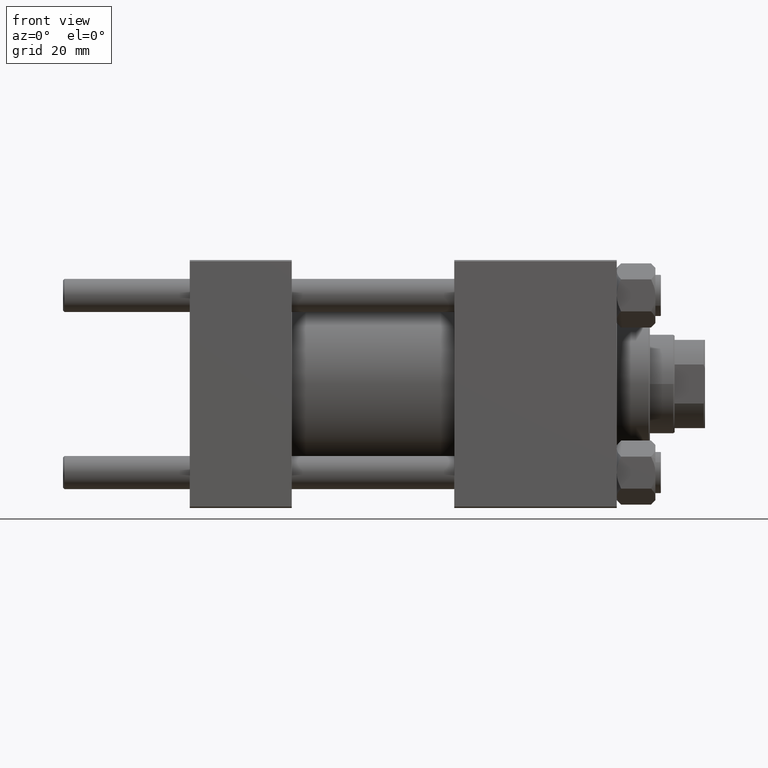
[diagram: clean part render]
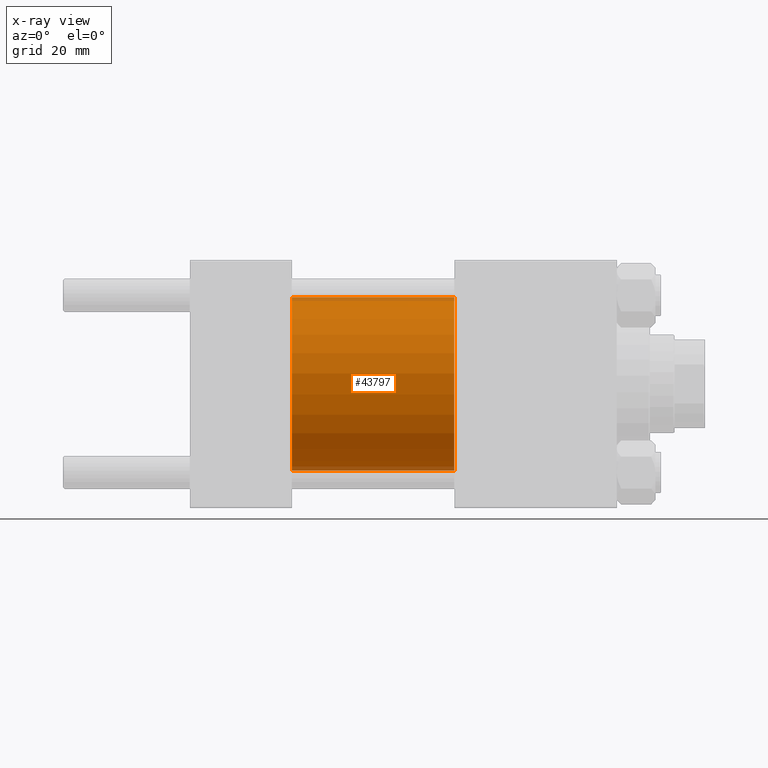
[diagram: x-ray — body ghosted, one internal face saturated and labeled with its STEP entity id]
A machine part, front view, then the same camera in x-ray: the body is ghosted and one INTERNAL B-rep face — a face not visible from any outside direction — is saturated and labeled: STEP entity #43797.
In plain terms, the highlighted cylindrical surface (partial cylindrical patch) has radius 31.5 mm, axis along (-1, -0, -0).
Its self-contained STEP definition (entity closure, byte-faithful):
#259 = VERTEX_POINT ( 'NONE', #23664 ) ;
#1783 = CARTESIAN_POINT ( 'NONE',  ( 37.00000000000000000, 3.857637417314162689E-15, -31.50000000000000000 ) ) ;
#2917 = VERTEX_POINT ( 'NONE', #4366 ) ;
#4366 = CARTESIAN_POINT ( 'NONE',  ( 96.00000000000000000, 3.857637417314162689E-15, -31.50000000000000000 ) ) ;
#4517 = EDGE_CURVE ( 'NONE', #34077, #2917, #47110, .T. ) ;
#6612 = EDGE_CURVE ( 'NONE', #2917, #36424, #20960, .T. ) ;
#7066 = CIRCLE ( 'NONE', #36802, 31.50000000000000000 ) ;
#7236 = DIRECTION ( 'NONE',  ( -1.000000000000000000, -0.000000000000000000, -0.000000000000000000 ) ) ;
#7388 = DIRECTION ( 'NONE',  ( 0.000000000000000000, 0.000000000000000000, -1.000000000000000000 ) ) ;
#9105 = CARTESIAN_POINT ( 'NONE',  ( 96.00000000000000000, 0.000000000000000000, 31.50000000000000000 ) ) ;
#11919 = CARTESIAN_POINT ( 'NONE',  ( 96.00000000000000000, 0.000000000000000000, 0.000000000000000000 ) ) ;
#11944 = VECTOR ( 'NONE', #7236, 1000.000000000000000 ) ;
#13269 = EDGE_CURVE ( 'NONE', #259, #36424, #7066, .T. ) ;
#14039 = CYLINDRICAL_SURFACE ( 'NONE', #25824, 31.50000000000000000 ) ;
#14748 = DIRECTION ( 'NONE',  ( 1.000000000000000000, 0.000000000000000000, 0.000000000000000000 ) ) ;
#16285 = CARTESIAN_POINT ( 'NONE',  ( 96.00000000000000000, 0.000000000000000000, 0.000000000000000000 ) ) ;
#19830 = VECTOR ( 'NONE', #32280, 1000.000000000000000 ) ;
#20064 = DIRECTION ( 'NONE',  ( 0.000000000000000000, 0.000000000000000000, 1.000000000000000000 ) ) ;
#20960 = LINE ( 'NONE', #39851, #19830 ) ;
#22047 = CARTESIAN_POINT ( 'NONE',  ( 37.00000000000000000, 0.000000000000000000, 0.000000000000000000 ) ) ;
#22488 = DIRECTION ( 'NONE',  ( 1.000000000000000000, 0.000000000000000000, 0.000000000000000000 ) ) ;
#23664 = CARTESIAN_POINT ( 'NONE',  ( 37.00000000000000000, 0.000000000000000000, 31.50000000000000000 ) ) ;
#25824 = AXIS2_PLACEMENT_3D ( 'NONE', #16285, #34910, #20064 ) ;
#25853 = LINE ( 'NONE', #41217, #11944 ) ;
#26550 = DIRECTION ( 'NONE',  ( 0.000000000000000000, 0.000000000000000000, -1.000000000000000000 ) ) ;
#31335 = ORIENTED_EDGE ( 'NONE', *, *, #13269, .F. ) ;
#32280 = DIRECTION ( 'NONE',  ( -1.000000000000000000, -0.000000000000000000, -0.000000000000000000 ) ) ;
#33349 = EDGE_CURVE ( 'NONE', #34077, #259, #25853, .T. ) ;
#33866 = ORIENTED_EDGE ( 'NONE', *, *, #6612, .T. ) ;
#34077 = VERTEX_POINT ( 'NONE', #9105 ) ;
#34910 = DIRECTION ( 'NONE',  ( -1.000000000000000000, -0.000000000000000000, -0.000000000000000000 ) ) ;
#36289 = EDGE_LOOP ( 'NONE', ( #43105, #33866, #31335, #41504 ) ) ;
#36424 = VERTEX_POINT ( 'NONE', #1783 ) ;
#36802 = AXIS2_PLACEMENT_3D ( 'NONE', #22047, #14748, #26550 ) ;
#36946 = FACE_OUTER_BOUND ( 'NONE', #36289, .T. ) ;
#38252 = AXIS2_PLACEMENT_3D ( 'NONE', #11919, #22488, #7388 ) ;
#39851 = CARTESIAN_POINT ( 'NONE',  ( 96.00000000000000000, 3.857637417314162689E-15, -31.50000000000000000 ) ) ;
#41217 = CARTESIAN_POINT ( 'NONE',  ( 96.00000000000000000, 0.000000000000000000, 31.50000000000000000 ) ) ;
#41504 = ORIENTED_EDGE ( 'NONE', *, *, #33349, .F. ) ;
#43105 = ORIENTED_EDGE ( 'NONE', *, *, #4517, .T. ) ;
#43797 = ADVANCED_FACE ( 'NONE', ( #36946 ), #14039, .F. ) ;
#47110 = CIRCLE ( 'NONE', #38252, 31.50000000000000000 ) ;